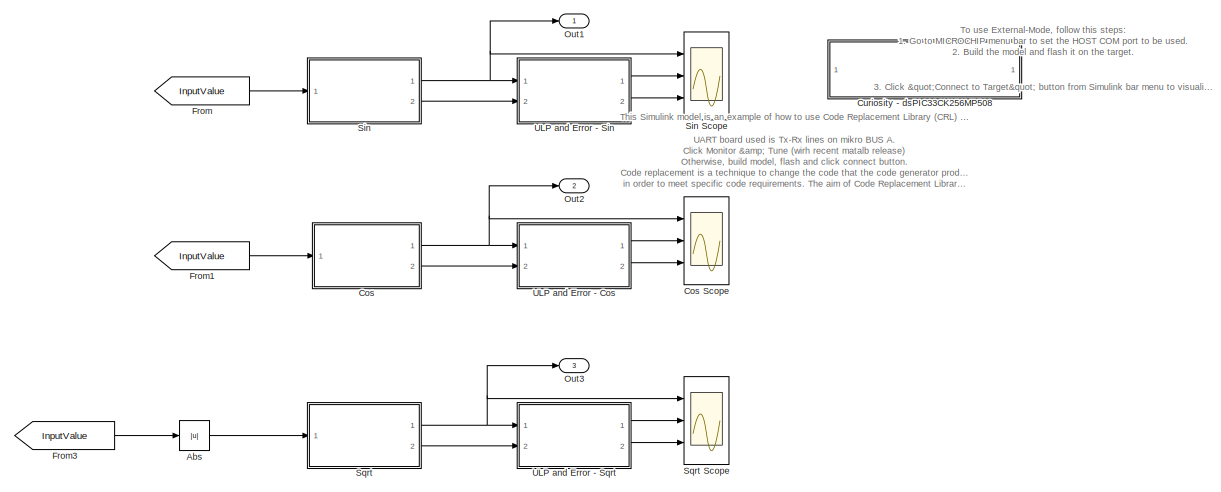
[diagram: root canvas - part 1/2, full width, top band]
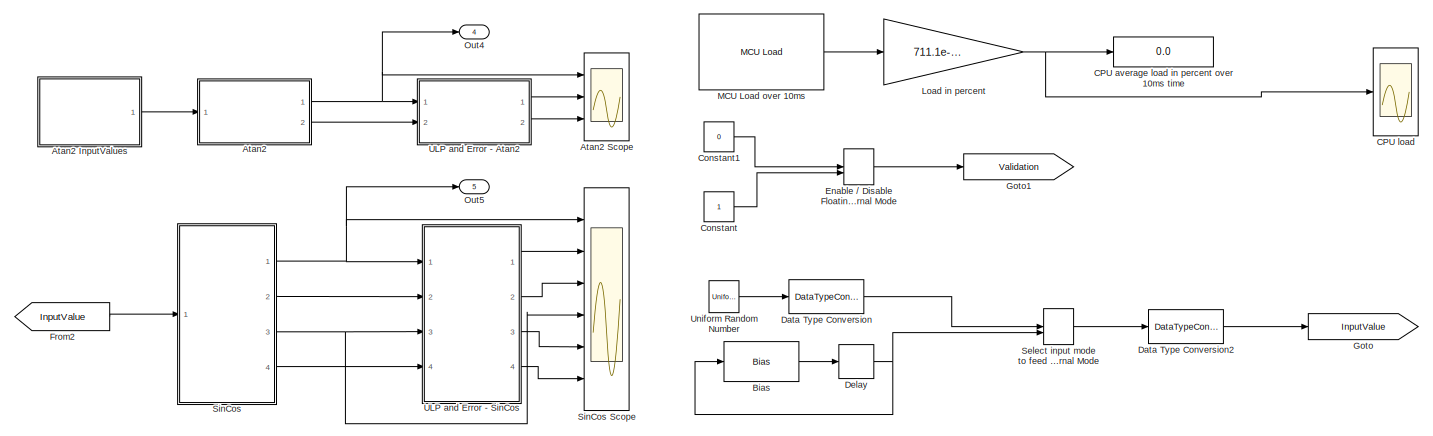
[diagram: root canvas - part 2/2, full width, bottom band]
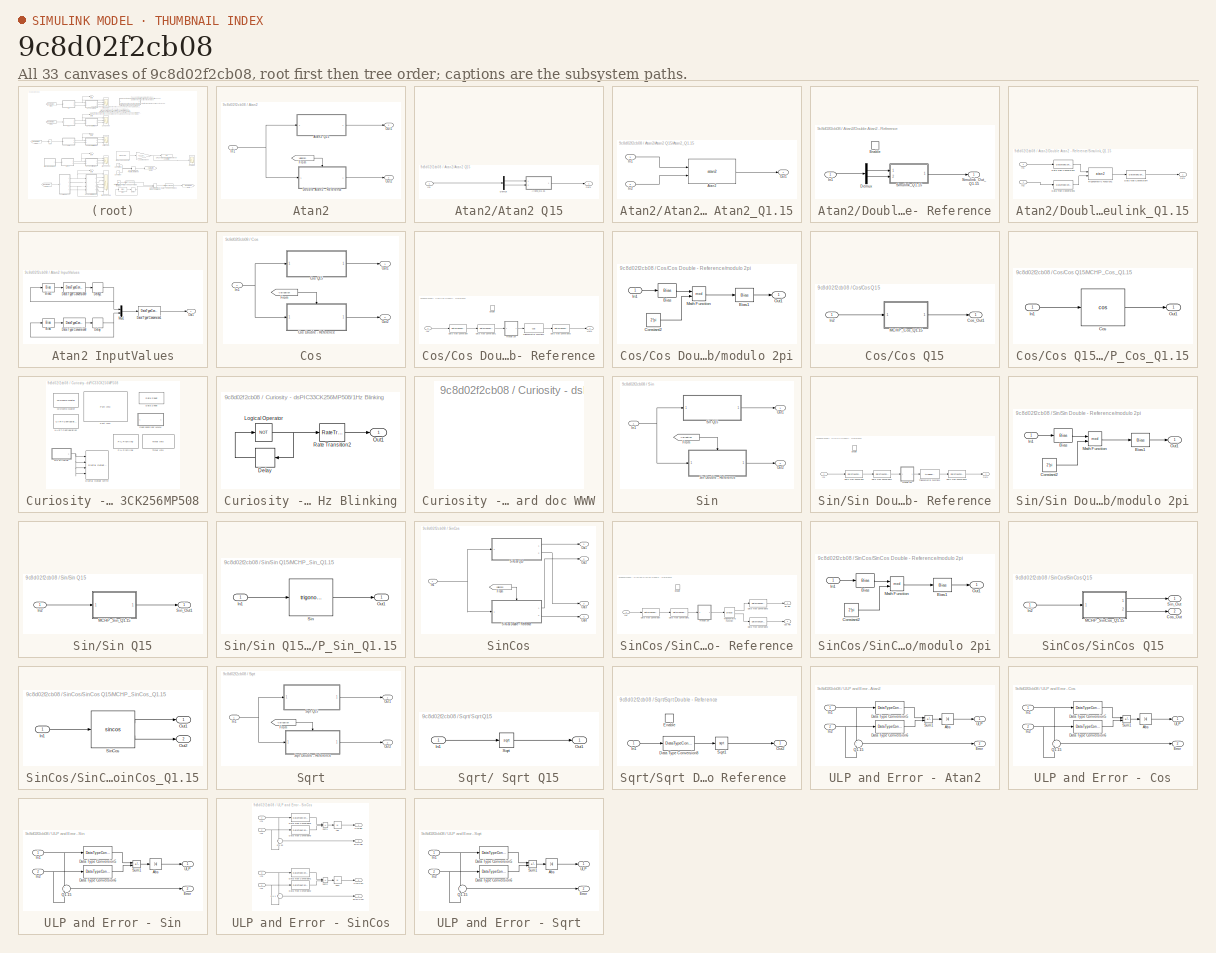
[diagram: thumbnail index - all 33 canvases of the model, root first then tree order]
MODEL slx_9c8d02f2cb08
KIND model
CONFIG AbsTol = auto
CONFIG EnableMultiTasking = off
CONFIG FixedStep = 0.01
CONFIG MaxStep = auto
CONFIG MinStep = auto
CONFIG RelTol = 1e-3
CONFIG SampleTimeConstraint = Unconstrained
CONFIG Solver = FixedStepDiscrete
CONFIG SolverName = FixedStepDiscrete
CONFIG StartTime = 0.0
CONFIG StopTime = inf
BLOCK [Abs] Abs
BLOCK [SubSystem] Atan2
  Ports = [1, 2]
  RequestExecContextInheritance = off
BLOCK [SubSystem] Atan2 InputValues
  Ports = [0, 1]
  RequestExecContextInheritance = off
BLOCK [Bias] Atan2 InputValues/Bias
  Bias = 13
  SaturateOnIntegerOverflow = off
BLOCK [Bias] Atan2 InputValues/Bias1
  Bias = 7
  SaturateOnIntegerOverflow = off
BLOCK [DataTypeConversion] Atan2 InputValues/Data Type Conversion1
  ConvertRealWorld = Stored Integer (SI)
  OutDataTypeStr = fixdt(1,16,15)
  RndMeth = Floor
  SaturateOnIntegerOverflow = off
BLOCK [DataTypeConversion] Atan2 InputValues/Data Type Conversion8
  ConvertRealWorld = Stored Integer (SI)
  OutDataTypeStr = uint16
  RndMeth = Floor
  SaturateOnIntegerOverflow = off
BLOCK [DataTypeConversion] Atan2 InputValues/Data Type Conversion9
  ConvertRealWorld = Stored Integer (SI)
  OutDataTypeStr = uint16
  RndMeth = Floor
  SaturateOnIntegerOverflow = off
BLOCK [Delay] Atan2 InputValues/Delay
  DelayLength = 1
  InitialCondition = 0
  InputPortMap = u0
  Ports = [1, 1]
BLOCK [Delay] Atan2 InputValues/Delay1
  DelayLength = 1
  InitialCondition = 0
  InputPortMap = u0
  Ports = [1, 1]
BLOCK [Mux] Atan2 InputValues/Mux1
  DisplayOption = bar
  Inputs = 2
  Ports = [2, 1]
BLOCK [Outport] Atan2 InputValues/Out1
BLOCK [Scope] Atan2 Scope
  Floating = off
  NumInputPorts = 3
  Ports = [3]
  ScopeSpecificationString = Simulink.scopes.TimeScopeBlockCfg('CurrentConfiguration', extmgr.ConfigurationSet(extmgr.Configuration('Core','General UI',true),extmgr.Configuration('Core','Source UI',true),extmgr.Configuration('Sources','WiredSimulink',true,'DataLoggingLimitDataPoints',true,'DataLoggingMaxPoints','300','DataLoggingVariableName','ScopeData1'),extmgr.Configuration('Visuals','Time Domain',true,'SerializedDisplays'...<+2899ch>
BLOCK [SubSystem] Atan2/Atan2 Q15
  Ports = [1, 1]
  RequestExecContextInheritance = off
BLOCK [SubSystem] Atan2/Atan2 Q15/Atan2_Q1.15
  Ports = [2, 1]
  RTWSystemCode = Reusable function
  RequestExecContextInheritance = off
  TreatAsAtomicUnit = on
BLOCK [Trigonometry] Atan2/Atan2 Q15/Atan2_Q1.15/Atan2
  ApproximationMethod = CORDIC
  NumberOfIterations = 15
  Operator = atan2
  OutputSignalType = real
  Ports = [2, 1]
BLOCK [Inport] Atan2/Atan2 Q15/Atan2_Q1.15/In1
BLOCK [Inport] Atan2/Atan2 Q15/Atan2_Q1.15/In2
  Port = 2
BLOCK [Outport] Atan2/Atan2 Q15/Atan2_Q1.15/Out1
BLOCK [Demux] Atan2/Atan2 Q15/Demux
  Outputs = 2
  Ports = [1, 2]
BLOCK [Inport] Atan2/Atan2 Q15/In1
BLOCK [Outport] Atan2/Atan2 Q15/Out1
BLOCK [SubSystem] Atan2/Double Atan2 - Reference
  Ports = [1, 1, 1]
  RTWSystemCode = Reusable function
  RequestExecContextInheritance = off
  TreatAsAtomicUnit = on
BLOCK [Demux] Atan2/Double Atan2 - Reference/Demux
  Outputs = 2
  Ports = [1, 2]
BLOCK [EnablePort] Atan2/Double Atan2 - Reference/Enable
  Ports = []
BLOCK [Inport] Atan2/Double Atan2 - Reference/In1
BLOCK [Outport] Atan2/Double Atan2 - Reference/Simulink_Out_Q1.15
BLOCK [SubSystem] Atan2/Double Atan2 - Reference/Simulink_Q1.15
  Ports = [2, 1]
  RTWSystemCode = Reusable function
  RequestExecContextInheritance = off
  TreatAsAtomicUnit = on
BLOCK [DataTypeConversion] Atan2/Double Atan2 - Reference/Simulink_Q1.15/Data Type Conversion1
  OutDataTypeStr = single
  RndMeth = Floor
  SaturateOnIntegerOverflow = off
BLOCK [DataTypeConversion] Atan2/Double Atan2 - Reference/Simulink_Q1.15/Data Type Conversion3
  OutDataTypeStr = single
  RndMeth = Floor
  SaturateOnIntegerOverflow = off
BLOCK [DataTypeConversion] Atan2/Double Atan2 - Reference/Simulink_Q1.15/Data Type Conversion4
  OutDataTypeStr = fixdt(1,16,13)
  RndMeth = Convergent
BLOCK [Inport] Atan2/Double Atan2 - Reference/Simulink_Q1.15/In1
BLOCK [Inport] Atan2/Double Atan2 - Reference/Simulink_Q1.15/In2
  Port = 2
BLOCK [Outport] Atan2/Double Atan2 - Reference/Simulink_Q1.15/Out1
BLOCK [Trigonometry] Atan2/Double Atan2 - Reference/Simulink_Q1.15/Trigonometric Function1
  NumberOfIterations = 14
  Operator = atan2
  OutputSignalType = real
  Ports = [2, 1]
BLOCK [From] Atan2/From
  GotoTag = Validation
  TagVisibility = global
BLOCK [Inport] Atan2/In1
BLOCK [Outport] Atan2/Out1
BLOCK [Outport] Atan2/Out2
  Port = 2
BLOCK [Bias] Bias
  Bias = 1+2^6
  SaturateOnIntegerOverflow = off
BLOCK [Display] CPU average load in percent over 10ms time
  Decimation = 1
  Format = long
  Ports = [1]
BLOCK [Scope] CPU load
  Floating = off
  NumInputPorts = 1
  Ports = [1]
  ScopeSpecificationString = Simulink.scopes.TimeScopeBlockCfg('CurrentConfiguration', extmgr.ConfigurationSet(extmgr.Configuration('Core','General UI',true),extmgr.Configuration('Core','Source UI',true),extmgr.Configuration('Sources','WiredSimulink',true,'DataLoggingLimitDataPoints',true,'DataLoggingMaxPoints','300','DataLoggingVariableName','ScopeData1'),extmgr.Configuration('Visuals','Time Domain',true,'SerializedDisplays'...<+1572ch>
BLOCK [Constant] Constant
  OutDataTypeStr = uint16
BLOCK [Constant] Constant1
  OutDataTypeStr = uint16
  Value = 0
BLOCK [SubSystem] Cos
  Ports = [1, 2]
  RequestExecContextInheritance = off
BLOCK [Scope] Cos Scope
  Floating = off
  NumInputPorts = 3
  Ports = [3]
  ScopeSpecificationString = Simulink.scopes.TimeScopeBlockCfg('CurrentConfiguration', extmgr.ConfigurationSet(extmgr.Configuration('Core','General UI',true),extmgr.Configuration('Core','Source UI',true),extmgr.Configuration('Sources','WiredSimulink',true,'DataLoggingLimitDataPoints',true,'DataLoggingMaxPoints','300','DataLoggingVariableName','ScopeData2'),extmgr.Configuration('Visuals','Time Domain',true,'SerializedDisplays'...<+2890ch>
BLOCK [SubSystem] Cos/Cos Double - Reference
  Ports = [1, 1, 1]
  RequestExecContextInheritance = off
BLOCK [DataTypeConversion] Cos/Cos Double - Reference/Data Type Conversion
  ConvertRealWorld = Stored Integer (SI)
  OutDataTypeStr = fixdt(1,16,15)
  RndMeth = Floor
  SaturateOnIntegerOverflow = off
BLOCK [DataTypeConversion] Cos/Cos Double - Reference/Data Type Conversion1
  OutDataTypeStr = single
  RndMeth = Floor
  SaturateOnIntegerOverflow = off
BLOCK [DataTypeConversion] Cos/Cos Double - Reference/Data Type Conversion3
  OutDataTypeStr = fixdt(1,16,14)
  RndMeth = Convergent
BLOCK [EnablePort] Cos/Cos Double - Reference/Enable
  Ports = []
BLOCK [Inport] Cos/Cos Double - Reference/In1
BLOCK [Outport] Cos/Cos Double - Reference/Out1
BLOCK [Trigonometry] Cos/Cos Double - Reference/Trigonometric Function1
  NumberOfIterations = 15
  Operator = cos
  Ports = [1, 1]
BLOCK [SubSystem] Cos/Cos Double - Reference/modulo 2pi
  Ports = [1, 1]
  RequestExecContextInheritance = off
BLOCK [Bias] Cos/Cos Double - Reference/modulo 2pi/Bias
  Bias = pi
  SaturateOnIntegerOverflow = off
BLOCK [Bias] Cos/Cos Double - Reference/modulo 2pi/Bias1
  Bias = -pi
  SaturateOnIntegerOverflow = off
BLOCK [Constant] Cos/Cos Double - Reference/modulo 2pi/Constant2
  OutDataTypeStr = single
  SampleTime = -1
  Value = 2*pi
BLOCK [Inport] Cos/Cos Double - Reference/modulo 2pi/In1
BLOCK [Math] Cos/Cos Double - Reference/modulo 2pi/Math Function
  Operator = mod
  Ports = [2, 1]
BLOCK [Outport] Cos/Cos Double - Reference/modulo 2pi/Out1
BLOCK [SubSystem] Cos/Cos Q15
  Ports = [1, 1]
  RequestExecContextInheritance = off
BLOCK [Outport] Cos/Cos Q15/Cos_Out1
  OutDataTypeStr = fixdt(1,16,14)
BLOCK [Inport] Cos/Cos Q15/In2
BLOCK [SubSystem] Cos/Cos Q15/MCHP_Cos_Q1.15
  Ports = [1, 1]
  RTWSystemCode = Reusable function
  RequestExecContextInheritance = off
  TreatAsAtomicUnit = on
BLOCK [Trigonometry] Cos/Cos Q15/MCHP_Cos_Q1.15/Cos
  ApproximationMethod = CORDIC
  NumberOfIterations = 16
  Operator = cos
  Ports = [1, 1]
BLOCK [Inport] Cos/Cos Q15/MCHP_Cos_Q1.15/In1
BLOCK [Outport] Cos/Cos Q15/MCHP_Cos_Q1.15/Out1
BLOCK [From] Cos/From
  GotoTag = Validation
  TagVisibility = global
BLOCK [Inport] Cos/In1
BLOCK [Outport] Cos/Out1
BLOCK [Outport] Cos/Out2
  Port = 2
BLOCK [SubSystem] Curiosity - dsPIC33CK256MP508
  Ports = []
  RequestExecContextInheritance = off
BLOCK [SubSystem] Curiosity - dsPIC33CK256MP508/1Hz Blinking
  Ports = [0, 1]
  RequestExecContextInheritance = off
BLOCK [Delay] Curiosity - dsPIC33CK256MP508/1Hz Blinking/Delay
  DelayLength = 1
  InitialCondition = 0
  InputPortMap = u0
  Ports = [1, 1]
  SampleTime = .5
BLOCK [Logic] Curiosity - dsPIC33CK256MP508/1Hz Blinking/Logical Operator
  AllPortsSameDT = off
  Operator = NOT
  OutDataTypeStr = boolean
  Ports = [1, 1]
BLOCK [Outport] Curiosity - dsPIC33CK256MP508/1Hz Blinking/Out1
BLOCK [RateTransition] Curiosity - dsPIC33CK256MP508/1Hz Blinking/Rate Transition2
  Deterministic = off
  OutPortSampleTime = .05
BLOCK [Reference] Curiosity - dsPIC33CK256MP508/Data Sheet  REF=MCHP_Blockset/System Info/Data Sheet
  AttributesFormatString = %<cpy_MCHP_Id>
  Ports = []
  SourceBlock = MCHP_Blockset/System Info/Data Sheet
BLOCK [Reference] Curiosity - dsPIC33CK256MP508/Digital Output Write  REF=MCHP_Blockset/Digital IO/Digital Output
Write
  Ports = [4]
  SourceBlock = MCHP_Blockset/Digital IO/Digital Output\nWrite
  SourceType = Output driver for Digital Output Pins
BLOCK [Reference] Curiosity - dsPIC33CK256MP508/Microchip Master  REF=MCHP_Blockset/System Configuration/Microchip Master
  Ports = []
  Priority = 1
  SourceBlock = MCHP_Blockset/System Configuration/Microchip Master
BLOCK [SubSystem] Curiosity - dsPIC33CK256MP508/Open board doc WWW
  OpenFcn = web('https://www.microchip.com/dspic33ckcuriosity','-browser');
  Ports = []
  RequestExecContextInheritance = off
BLOCK [Reference] Curiosity - dsPIC33CK256MP508/PIL Profiling  REF=MCHP_Blockset/Profiling/PIL Profiling
  Ports = []
  SourceBlock = MCHP_Blockset/Profiling/PIL Profiling
  SourceType = Timer Configuration
BLOCK [Reference] Curiosity - dsPIC33CK256MP508/Port Info  REF=MCHP_Blockset/System Info/Port Info
  Ports = []
  SourceBlock = MCHP_Blockset/System Info/Port Info
BLOCK [Reference] Curiosity - dsPIC33CK256MP508/Timer Info  REF=MCHP_Blockset/System Info/Timer Info
  Ports = []
  SourceBlock = MCHP_Blockset/System Info/Timer Info
BLOCK [Reference] Curiosity - dsPIC33CK256MP508/UART Configuration  REF=MCHP_Blockset/BUS UART/UART Configuration
  Ports = []
  SourceBlock = MCHP_Blockset/BUS UART/UART Configuration
  SourceType = Configuration for UART peripheral
BLOCK [DataTypeConversion] Data Type Conversion
  ConvertRealWorld = Stored Integer (SI)
  OutDataTypeStr = uint16
  RndMeth = Floor
  SaturateOnIntegerOverflow = off
BLOCK [DataTypeConversion] Data Type Conversion2
  ConvertRealWorld = Stored Integer (SI)
  OutDataTypeStr = fixdt(1,16,15)
  RndMeth = Floor
  SaturateOnIntegerOverflow = off
BLOCK [Delay] Delay
  DelayLength = 1
  InitialCondition = uint16(0)
  InputPortMap = u0
  Ports = [1, 1]
BLOCK [ManualSwitch] Enable // Disable Floating-Point Reference Output *Modifiable in External Mode
  CurrentSetting = 0
BLOCK [From] From
  GotoTag = InputValue
BLOCK [From] From1
  GotoTag = InputValue
BLOCK [From] From2
  GotoTag = InputValue
BLOCK [From] From3
  GotoTag = InputValue
BLOCK [Goto] Goto
  GotoTag = InputValue
BLOCK [Goto] Goto1
  GotoTag = Validation
  TagVisibility = global
BLOCK [Gain] Load in percent
  Gain = 711.1e-9 / 0.01 * 100
  OutDataTypeStr = single
  OutMax = [20]
  OutMin = [0]
  ParamDataTypeStr = Inherit: Inherit from 'Gain'
BLOCK [Reference] MCU Load over 10ms  REF=MCHP_Blockset/Profiling/MCU Load
  Ports = [0, 1]
  SourceBlock = MCHP_Blockset/Profiling/MCU Load
  SourceType = MCU Load (Profile execution time)
BLOCK [Outport] Out1
BLOCK [Outport] Out2
  Port = 2
BLOCK [Outport] Out3
  Port = 3
BLOCK [Outport] Out4
  Port = 4
BLOCK [Outport] Out5
  Port = 5
BLOCK [ManualSwitch] Select input mode to feed the functions under test *Modifiable in External Mode
  CurrentSetting = 0
BLOCK [SubSystem] Sin
  Ports = [1, 2]
  RequestExecContextInheritance = off
BLOCK [Scope] Sin Scope
  Floating = off
  NumInputPorts = 3
  Ports = [3]
  ScopeSpecificationString = Simulink.scopes.TimeScopeBlockCfg('CurrentConfiguration', extmgr.ConfigurationSet(extmgr.Configuration('Core','General UI',true),extmgr.Configuration('Core','Source UI',true),extmgr.Configuration('Sources','WiredSimulink',true,'DataLoggingLimitDataPoints',true,'DataLoggingMaxPoints','300','DataLoggingVariableName','ScopeData3'),extmgr.Configuration('Visuals','Time Domain',true,'SerializedDisplays'...<+2835ch>
BLOCK [From] Sin/From
  GotoTag = Validation
  TagVisibility = global
BLOCK [Inport] Sin/In1
BLOCK [Outport] Sin/Out1
BLOCK [Outport] Sin/Out2
  Port = 2
BLOCK [SubSystem] Sin/Sin Double - Reference
  Ports = [1, 1, 1]
  RequestExecContextInheritance = off
BLOCK [DataTypeConversion] Sin/Sin Double - Reference/Data Type Conversion
  ConvertRealWorld = Stored Integer (SI)
  OutDataTypeStr = fixdt(1,16,15)
  RndMeth = Floor
  SaturateOnIntegerOverflow = off
BLOCK [DataTypeConversion] Sin/Sin Double - Reference/Data Type Conversion1
  OutDataTypeStr = single
  RndMeth = Floor
  SaturateOnIntegerOverflow = off
BLOCK [DataTypeConversion] Sin/Sin Double - Reference/Data Type Conversion3
  OutDataTypeStr = fixdt(1,16,14)
  RndMeth = Convergent
BLOCK [EnablePort] Sin/Sin Double - Reference/Enable
  Ports = []
BLOCK [Inport] Sin/Sin Double - Reference/In1
BLOCK [Outport] Sin/Sin Double - Reference/Out1
BLOCK [Trigonometry] Sin/Sin Double - Reference/Trigonometric Function1
  NumberOfIterations = 15
  Ports = [1, 1]
BLOCK [SubSystem] Sin/Sin Double - Reference/modulo 2pi
  Ports = [1, 1]
  RequestExecContextInheritance = off
BLOCK [Bias] Sin/Sin Double - Reference/modulo 2pi/Bias
  Bias = pi
  SaturateOnIntegerOverflow = off
BLOCK [Bias] Sin/Sin Double - Reference/modulo 2pi/Bias1
  Bias = -pi
  SaturateOnIntegerOverflow = off
BLOCK [Constant] Sin/Sin Double - Reference/modulo 2pi/Constant2
  OutDataTypeStr = single
  SampleTime = -1
  Value = 2*pi
BLOCK [Inport] Sin/Sin Double - Reference/modulo 2pi/In1
BLOCK [Math] Sin/Sin Double - Reference/modulo 2pi/Math Function
  Operator = mod
  Ports = [2, 1]
BLOCK [Outport] Sin/Sin Double - Reference/modulo 2pi/Out1
BLOCK [SubSystem] Sin/Sin Q15
  Ports = [1, 1]
  RequestExecContextInheritance = off
BLOCK [Inport] Sin/Sin Q15/In2
BLOCK [SubSystem] Sin/Sin Q15/MCHP_Sin_Q1.15
  Ports = [1, 1]
  RTWSystemCode = Reusable function
  RequestExecContextInheritance = off
  TreatAsAtomicUnit = on
BLOCK [Inport] Sin/Sin Q15/MCHP_Sin_Q1.15/In1
BLOCK [Outport] Sin/Sin Q15/MCHP_Sin_Q1.15/Out1
BLOCK [Trigonometry] Sin/Sin Q15/MCHP_Sin_Q1.15/Sin
  ApproximationMethod = CORDIC
  NumberOfIterations = 16
  Ports = [1, 1]
BLOCK [Outport] Sin/Sin Q15/Sin_Out1
  OutDataTypeStr = fixdt(1,16,14)
BLOCK [SubSystem] SinCos
  Ports = [1, 4]
  RequestExecContextInheritance = off
BLOCK [Scope] SinCos Scope
  Floating = off
  NumInputPorts = 6
  Ports = [6]
  ScopeSpecificationString = Simulink.scopes.TimeScopeBlockCfg('CurrentConfiguration', extmgr.ConfigurationSet(extmgr.Configuration('Core','General UI',true),extmgr.Configuration('Core','Source UI',true),extmgr.Configuration('Sources','WiredSimulink',true,'DataLoggingVariableName','ScopeData4','DataLoggingLimitDataPoints',true,'DataLoggingMaxPoints','300'),extmgr.Configuration('Visuals','Time Domain',true,'SerializedDisplays'...<+4946ch>
BLOCK [From] SinCos/From
  GotoTag = Validation
  TagVisibility = global
BLOCK [Inport] SinCos/In1
BLOCK [Outport] SinCos/Out1
BLOCK [Outport] SinCos/Out2
  Port = 2
BLOCK [Outport] SinCos/Out3
  Port = 3
BLOCK [Outport] SinCos/Out4
  Port = 4
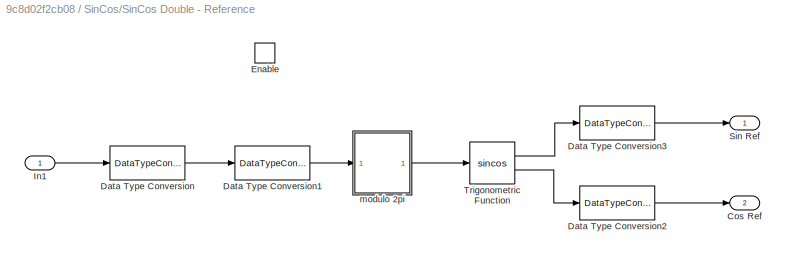
BLOCK [SubSystem] SinCos/SinCos Double - Reference
  Ports = [1, 2, 1]
  RequestExecContextInheritance = off
BLOCK [Outport] SinCos/SinCos Double - Reference/Cos Ref
  Port = 2
BLOCK [DataTypeConversion] SinCos/SinCos Double - Reference/Data Type Conversion
  ConvertRealWorld = Stored Integer (SI)
  OutDataTypeStr = fixdt(1,16,15)
  RndMeth = Floor
  SaturateOnIntegerOverflow = off
BLOCK [DataTypeConversion] SinCos/SinCos Double - Reference/Data Type Conversion1
  OutDataTypeStr = single
  RndMeth = Floor
  SaturateOnIntegerOverflow = off
BLOCK [DataTypeConversion] SinCos/SinCos Double - Reference/Data Type Conversion2
  OutDataTypeStr = fixdt(1,16,14)
  RndMeth = Convergent
BLOCK [DataTypeConversion] SinCos/SinCos Double - Reference/Data Type Conversion3
  OutDataTypeStr = fixdt(1,16,14)
  RndMeth = Convergent
BLOCK [EnablePort] SinCos/SinCos Double - Reference/Enable
  Ports = []
BLOCK [Inport] SinCos/SinCos Double - Reference/In1
BLOCK [Outport] SinCos/SinCos Double - Reference/Sin Ref
BLOCK [Trigonometry] SinCos/SinCos Double - Reference/Trigonometric Function
  Operator = sincos
  Ports = [1, 2]
BLOCK [SubSystem] SinCos/SinCos Double - Reference/modulo 2pi
  Ports = [1, 1]
  RequestExecContextInheritance = off
BLOCK [Bias] SinCos/SinCos Double - Reference/modulo 2pi/Bias
  Bias = pi
  SaturateOnIntegerOverflow = off
BLOCK [Bias] SinCos/SinCos Double - Reference/modulo 2pi/Bias1
  Bias = -pi
  SaturateOnIntegerOverflow = off
BLOCK [Constant] SinCos/SinCos Double - Reference/modulo 2pi/Constant2
  OutDataTypeStr = single
  SampleTime = -1
  Value = 2*pi
BLOCK [Inport] SinCos/SinCos Double - Reference/modulo 2pi/In1
BLOCK [Math] SinCos/SinCos Double - Reference/modulo 2pi/Math Function
  Operator = mod
  Ports = [2, 1]
BLOCK [Outport] SinCos/SinCos Double - Reference/modulo 2pi/Out1
BLOCK [SubSystem] SinCos/SinCos Q15
  Ports = [1, 2]
  RequestExecContextInheritance = off
BLOCK [Outport] SinCos/SinCos Q15/Cos_Out
  OutDataTypeStr = fixdt(1,16,14)
  Port = 2
BLOCK [Inport] SinCos/SinCos Q15/In2
BLOCK [SubSystem] SinCos/SinCos Q15/MCHP_SinCos_Q1.15
  Ports = [1, 2]
  RTWSystemCode = Reusable function
  RequestExecContextInheritance = off
  TreatAsAtomicUnit = on
BLOCK [Inport] SinCos/SinCos Q15/MCHP_SinCos_Q1.15/In1
BLOCK [Outport] SinCos/SinCos Q15/MCHP_SinCos_Q1.15/Out1
BLOCK [Outport] SinCos/SinCos Q15/MCHP_SinCos_Q1.15/Out2
  Port = 2
BLOCK [Trigonometry] SinCos/SinCos Q15/MCHP_SinCos_Q1.15/SinCos
  ApproximationMethod = CORDIC
  NumberOfIterations = 16
  Operator = sincos
  Ports = [1, 2]
BLOCK [Outport] SinCos/SinCos Q15/Sin_Out
  OutDataTypeStr = fixdt(1,16,14)
BLOCK [SubSystem] Sqrt
  Ports = [1, 2]
  RequestExecContextInheritance = off
BLOCK [Scope] Sqrt Scope 
  Floating = off
  NumInputPorts = 3
  Ports = [3]
  ScopeSpecificationString = Simulink.scopes.TimeScopeBlockCfg('CurrentConfiguration', extmgr.ConfigurationSet(extmgr.Configuration('Core','General UI',true),extmgr.Configuration('Core','Source UI',true),extmgr.Configuration('Sources','WiredSimulink',true,'DataLoggingLimitDataPoints',true,'DataLoggingMaxPoints','300'),extmgr.Configuration('Visuals','Time Domain',true,'SerializedDisplays',{struct('MinYLimReal','0.59239','MaxYL...<+2856ch>
BLOCK [SubSystem] Sqrt/ Sqrt Q15
  Ports = [1, 1]
  RTWSystemCode = Reusable function
  RequestExecContextInheritance = off
  TreatAsAtomicUnit = on
BLOCK [Inport] Sqrt/ Sqrt Q15/In1
BLOCK [Outport] Sqrt/ Sqrt Q15/Out1
BLOCK [Sqrt] Sqrt/ Sqrt Q15/Sqrt
  OutDataTypeStr = fixdt(1,16,15)
  SaturateOnIntegerOverflow = off
BLOCK [From] Sqrt/From
  GotoTag = Validation
  TagVisibility = global
BLOCK [Inport] Sqrt/In1
BLOCK [Outport] Sqrt/Out1
BLOCK [Outport] Sqrt/Out2
  Port = 2
BLOCK [SubSystem] Sqrt/Sqrt Double - Reference 
  Ports = [1, 1, 1]
  RequestExecContextInheritance = off
  TreatAsAtomicUnit = on
BLOCK [DataTypeConversion] Sqrt/Sqrt Double - Reference /Data Type Conversion8
  OutDataTypeStr = single
  RndMeth = Floor
  SaturateOnIntegerOverflow = off
BLOCK [EnablePort] Sqrt/Sqrt Double - Reference /Enable
  Ports = []
BLOCK [Inport] Sqrt/Sqrt Double - Reference /In1
BLOCK [Outport] Sqrt/Sqrt Double - Reference /Out2
BLOCK [Sqrt] Sqrt/Sqrt Double - Reference /Sqrt1
  OutDataTypeStr = fixdt(1,16,15)
  RndMeth = Convergent
  SaturateOnIntegerOverflow = off
BLOCK [SubSystem] ULP and Error - Atan2
  Ports = [2, 2]
  RequestExecContextInheritance = off
BLOCK [Abs] ULP and Error - Atan2/Abs
BLOCK [DataTypeConversion] ULP and Error - Atan2/Data Type Conversion5
  ConvertRealWorld = Stored Integer (SI)
  OutDataTypeStr = int16
  RndMeth = Floor
  SaturateOnIntegerOverflow = off
BLOCK [DataTypeConversion] ULP and Error - Atan2/Data Type Conversion6
  ConvertRealWorld = Stored Integer (SI)
  OutDataTypeStr = int16
  RndMeth = Floor
  SaturateOnIntegerOverflow = off
BLOCK [Outport] ULP and Error - Atan2/Error
  Port = 2
BLOCK [Inport] ULP and Error - Atan2/In1
BLOCK [Inport] ULP and Error - Atan2/In2
  Port = 2
BLOCK [Sum] ULP and Error - Atan2/Q1.15
  Inputs = +-
  OutDataTypeStr = single
  Ports = [2, 1]
BLOCK [Sum] ULP and Error - Atan2/Sum1
  IconShape = rectangular
  Inputs = +-
  OutDataTypeStr = Inherit: Same as first input
  Ports = [2, 1]
  SaturateOnIntegerOverflow = on
BLOCK [Outport] ULP and Error - Atan2/ULP
BLOCK [SubSystem] ULP and Error - Cos
  Ports = [2, 2]
  RequestExecContextInheritance = off
BLOCK [Abs] ULP and Error - Cos/Abs
BLOCK [DataTypeConversion] ULP and Error - Cos/Data Type Conversion5
  ConvertRealWorld = Stored Integer (SI)
  OutDataTypeStr = int16
  RndMeth = Floor
  SaturateOnIntegerOverflow = off
BLOCK [DataTypeConversion] ULP and Error - Cos/Data Type Conversion6
  ConvertRealWorld = Stored Integer (SI)
  OutDataTypeStr = int16
  RndMeth = Floor
  SaturateOnIntegerOverflow = off
BLOCK [Outport] ULP and Error - Cos/Error
  Port = 2
BLOCK [Inport] ULP and Error - Cos/In1
BLOCK [Inport] ULP and Error - Cos/In2
  Port = 2
BLOCK [Sum] ULP and Error - Cos/Q1.15
  Inputs = +-
  OutDataTypeStr = single
  Ports = [2, 1]
BLOCK [Sum] ULP and Error - Cos/Sum1
  IconShape = rectangular
  Inputs = +-
  OutDataTypeStr = Inherit: Same as first input
  Ports = [2, 1]
  SaturateOnIntegerOverflow = on
BLOCK [Outport] ULP and Error - Cos/ULP
BLOCK [SubSystem] ULP and Error - Sin
  Ports = [2, 2]
  RequestExecContextInheritance = off
BLOCK [Abs] ULP and Error - Sin/Abs
BLOCK [DataTypeConversion] ULP and Error - Sin/Data Type Conversion5
  ConvertRealWorld = Stored Integer (SI)
  OutDataTypeStr = int16
  RndMeth = Floor
  SaturateOnIntegerOverflow = off
BLOCK [DataTypeConversion] ULP and Error - Sin/Data Type Conversion6
  ConvertRealWorld = Stored Integer (SI)
  OutDataTypeStr = int16
  RndMeth = Floor
  SaturateOnIntegerOverflow = off
BLOCK [Outport] ULP and Error - Sin/Error
  Port = 2
BLOCK [Inport] ULP and Error - Sin/In1
BLOCK [Inport] ULP and Error - Sin/In2
  Port = 2
BLOCK [Sum] ULP and Error - Sin/Q1.15
  Inputs = +-
  OutDataTypeStr = single
  Ports = [2, 1]
BLOCK [Sum] ULP and Error - Sin/Sum1
  IconShape = rectangular
  Inputs = +-
  OutDataTypeStr = Inherit: Same as first input
  Ports = [2, 1]
  SaturateOnIntegerOverflow = on
BLOCK [Outport] ULP and Error - Sin/ULP
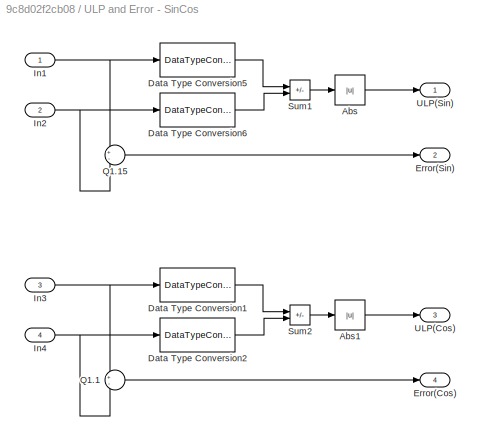
BLOCK [SubSystem] ULP and Error - SinCos
  Ports = [4, 4]
  RequestExecContextInheritance = off
BLOCK [Abs] ULP and Error - SinCos/Abs
BLOCK [Abs] ULP and Error - SinCos/Abs1
BLOCK [DataTypeConversion] ULP and Error - SinCos/Data Type Conversion1
  ConvertRealWorld = Stored Integer (SI)
  OutDataTypeStr = int16
  RndMeth = Floor
  SaturateOnIntegerOverflow = off
BLOCK [DataTypeConversion] ULP and Error - SinCos/Data Type Conversion2
  ConvertRealWorld = Stored Integer (SI)
  OutDataTypeStr = int16
  RndMeth = Floor
  SaturateOnIntegerOverflow = off
BLOCK [DataTypeConversion] ULP and Error - SinCos/Data Type Conversion5
  ConvertRealWorld = Stored Integer (SI)
  OutDataTypeStr = int16
  RndMeth = Floor
  SaturateOnIntegerOverflow = off
BLOCK [DataTypeConversion] ULP and Error - SinCos/Data Type Conversion6
  ConvertRealWorld = Stored Integer (SI)
  OutDataTypeStr = int16
  RndMeth = Floor
  SaturateOnIntegerOverflow = off
BLOCK [Outport] ULP and Error - SinCos/Error(Cos)
  Port = 4
BLOCK [Outport] ULP and Error - SinCos/Error(Sin)
  Port = 2
BLOCK [Inport] ULP and Error - SinCos/In1
BLOCK [Inport] ULP and Error - SinCos/In2
  Port = 2
BLOCK [Inport] ULP and Error - SinCos/In3
  Port = 3
BLOCK [Inport] ULP and Error - SinCos/In4
  Port = 4
BLOCK [Sum] ULP and Error - SinCos/Q1.1
  Inputs = +-
  OutDataTypeStr = single
  Ports = [2, 1]
BLOCK [Sum] ULP and Error - SinCos/Q1.15
  Inputs = +-
  OutDataTypeStr = single
  Ports = [2, 1]
BLOCK [Sum] ULP and Error - SinCos/Sum1
  IconShape = rectangular
  Inputs = +-
  OutDataTypeStr = Inherit: Same as first input
  Ports = [2, 1]
  SaturateOnIntegerOverflow = on
BLOCK [Sum] ULP and Error - SinCos/Sum2
  IconShape = rectangular
  Inputs = +-
  OutDataTypeStr = Inherit: Same as first input
  Ports = [2, 1]
  SaturateOnIntegerOverflow = on
BLOCK [Outport] ULP and Error - SinCos/ULP(Cos)
  Port = 3
BLOCK [Outport] ULP and Error - SinCos/ULP(Sin)
BLOCK [SubSystem] ULP and Error - Sqrt
  Ports = [2, 2]
  RequestExecContextInheritance = off
BLOCK [Abs] ULP and Error - Sqrt/Abs
BLOCK [DataTypeConversion] ULP and Error - Sqrt/Data Type Conversion5
  ConvertRealWorld = Stored Integer (SI)
  OutDataTypeStr = int16
  RndMeth = Floor
  SaturateOnIntegerOverflow = off
BLOCK [DataTypeConversion] ULP and Error - Sqrt/Data Type Conversion6
  ConvertRealWorld = Stored Integer (SI)
  OutDataTypeStr = int16
  RndMeth = Floor
  SaturateOnIntegerOverflow = off
BLOCK [Outport] ULP and Error - Sqrt/Error
  Port = 2
BLOCK [Inport] ULP and Error - Sqrt/In1
BLOCK [Inport] ULP and Error - Sqrt/In2
  Port = 2
BLOCK [Sum] ULP and Error - Sqrt/Q1.15
  Inputs = +-
  OutDataTypeStr = single
  Ports = [2, 1]
BLOCK [Sum] ULP and Error - Sqrt/Sum1
  IconShape = rectangular
  Inputs = +-
  OutDataTypeStr = Inherit: Same as first input
  Ports = [2, 1]
  SaturateOnIntegerOverflow = on
BLOCK [Outport] ULP and Error - Sqrt/ULP
BLOCK [UniformRandomNumber] Uniform Random Number
  Maximum = 2^16
  Minimum = 0
ANNOTATION (root): This Simulink model is an example of how to use Code Replacement Library (CRL) for dsPIC devices in External Mode. This model could be adapted to work in PIL mode as Referenced Model. UART board used is Tx-Rx lines on mikro BUS A. Click Monitor & Tune (wirh recent matalb release) Otherwise, build model, flash and click connect button. Code replacement is a technique to change the code that the cod...<+1140ch>
ANNOTATION (root): To use External-Mode, follow this steps: 1. Go to MICROCHIP menu bar to set the HOST COM port to be used. 2. Build the model and flash it on the target. 3. Click "Connect to Target" button from Simulink bar menu to visualise onboard-computed values.
LINE Abs:1 -> Sqrt:1
LINE Atan2 InputValues/Bias1:1 -> Atan2 InputValues/Data Type Conversion9:1
LINE Atan2 InputValues/Bias:1 -> Atan2 InputValues/Data Type Conversion8:1
LINE Atan2 InputValues/Data Type Conversion1:1 -> Atan2 InputValues/Out1:1
LINE Atan2 InputValues/Data Type Conversion8:1 -> Atan2 InputValues/Delay:1
LINE Atan2 InputValues/Data Type Conversion9:1 -> Atan2 InputValues/Delay1:1
NET Atan2 InputValues/Delay1:1 -> Atan2 InputValues/Bias1:1, Atan2 InputValues/Mux1:1
NET Atan2 InputValues/Delay:1 -> Atan2 InputValues/Bias:1, Atan2 InputValues/Mux1:2
LINE Atan2 InputValues/Mux1:1 -> Atan2 InputValues/Data Type Conversion1:1
LINE Atan2 InputValues:1 -> Atan2:1
LINE Atan2/Atan2 Q15/Atan2_Q1.15/Atan2:1 -> Atan2/Atan2 Q15/Atan2_Q1.15/Out1:1
LINE Atan2/Atan2 Q15/Atan2_Q1.15/In1:1 -> Atan2/Atan2 Q15/Atan2_Q1.15/Atan2:1
LINE Atan2/Atan2 Q15/Atan2_Q1.15/In2:1 -> Atan2/Atan2 Q15/Atan2_Q1.15/Atan2:2
LINE Atan2/Atan2 Q15/Atan2_Q1.15:1 -> Atan2/Atan2 Q15/Out1:1
LINE Atan2/Atan2 Q15/Demux:1 -> Atan2/Atan2 Q15/Atan2_Q1.15:1
LINE Atan2/Atan2 Q15/Demux:2 -> Atan2/Atan2 Q15/Atan2_Q1.15:2
LINE Atan2/Atan2 Q15/In1:1 -> Atan2/Atan2 Q15/Demux:1
LINE Atan2/Atan2 Q15:1 -> Atan2/Out1:1
LINE Atan2/Double Atan2 - Reference/Demux:1 -> Atan2/Double Atan2 - Reference/Simulink_Q1.15:1
LINE Atan2/Double Atan2 - Reference/Demux:2 -> Atan2/Double Atan2 - Reference/Simulink_Q1.15:2
LINE Atan2/Double Atan2 - Reference/In1:1 -> Atan2/Double Atan2 - Reference/Demux:1
LINE Atan2/Double Atan2 - Reference/Simulink_Q1.15/Data Type Conversion1:1 -> Atan2/Double Atan2 - Reference/Simulink_Q1.15/Trigonometric Function1:1
LINE Atan2/Double Atan2 - Reference/Simulink_Q1.15/Data Type Conversion3:1 -> Atan2/Double Atan2 - Reference/Simulink_Q1.15/Trigonometric Function1:2
LINE Atan2/Double Atan2 - Reference/Simulink_Q1.15/Data Type Conversion4:1 -> Atan2/Double Atan2 - Reference/Simulink_Q1.15/Out1:1
LINE Atan2/Double Atan2 - Reference/Simulink_Q1.15/In1:1 -> Atan2/Double Atan2 - Reference/Simulink_Q1.15/Data Type Conversion1:1
LINE Atan2/Double Atan2 - Reference/Simulink_Q1.15/In2:1 -> Atan2/Double Atan2 - Reference/Simulink_Q1.15/Data Type Conversion3:1
LINE Atan2/Double Atan2 - Reference/Simulink_Q1.15/Trigonometric Function1:1 -> Atan2/Double Atan2 - Reference/Simulink_Q1.15/Data Type Conversion4:1
LINE Atan2/Double Atan2 - Reference/Simulink_Q1.15:1 -> Atan2/Double Atan2 - Reference/Simulink_Out_Q1.15:1
LINE Atan2/Double Atan2 - Reference:1 -> Atan2/Out2:1
LINE Atan2/From:1 -> Atan2/Double Atan2 - Reference:enable
NET Atan2/In1:1 -> Atan2/Atan2 Q15:1, Atan2/Double Atan2 - Reference:1
NET Atan2:1 -> Atan2 Scope:1, Out4:1, ULP and Error - Atan2:1
LINE Atan2:2 -> ULP and Error - Atan2:2
LINE Bias:1 -> Delay:1
LINE Constant1:1 -> Enable // Disable Floating-Point Reference Output *Modifiable in External Mode:1
LINE Constant:1 -> Enable // Disable Floating-Point Reference Output *Modifiable in External Mode:2
LINE Cos/Cos Double - Reference/Data Type Conversion1:1 -> Cos/Cos Double - Reference/modulo 2pi:1
LINE Cos/Cos Double - Reference/Data Type Conversion3:1 -> Cos/Cos Double - Reference/Out1:1
LINE Cos/Cos Double - Reference/Data Type Conversion:1 -> Cos/Cos Double - Reference/Data Type Conversion1:1
LINE Cos/Cos Double - Reference/In1:1 -> Cos/Cos Double - Reference/Data Type Conversion:1
LINE Cos/Cos Double - Reference/Trigonometric Function1:1 -> Cos/Cos Double - Reference/Data Type Conversion3:1
LINE Cos/Cos Double - Reference/modulo 2pi/Bias1:1 -> Cos/Cos Double - Reference/modulo 2pi/Out1:1
LINE Cos/Cos Double - Reference/modulo 2pi/Bias:1 -> Cos/Cos Double - Reference/modulo 2pi/Math Function:1
LINE Cos/Cos Double - Reference/modulo 2pi/Constant2:1 -> Cos/Cos Double - Reference/modulo 2pi/Math Function:2
LINE Cos/Cos Double - Reference/modulo 2pi/In1:1 -> Cos/Cos Double - Reference/modulo 2pi/Bias:1
LINE Cos/Cos Double - Reference/modulo 2pi/Math Function:1 -> Cos/Cos Double - Reference/modulo 2pi/Bias1:1
LINE Cos/Cos Double - Reference/modulo 2pi:1 -> Cos/Cos Double - Reference/Trigonometric Function1:1
LINE Cos/Cos Double - Reference:1 -> Cos/Out2:1
LINE Cos/Cos Q15/In2:1 -> Cos/Cos Q15/MCHP_Cos_Q1.15:1
LINE Cos/Cos Q15/MCHP_Cos_Q1.15/Cos:1 -> Cos/Cos Q15/MCHP_Cos_Q1.15/Out1:1
LINE Cos/Cos Q15/MCHP_Cos_Q1.15/In1:1 -> Cos/Cos Q15/MCHP_Cos_Q1.15/Cos:1
LINE Cos/Cos Q15/MCHP_Cos_Q1.15:1 -> Cos/Cos Q15/Cos_Out1:1
LINE Cos/Cos Q15:1 -> Cos/Out1:1
LINE Cos/From:1 -> Cos/Cos Double - Reference:enable
NET Cos/In1:1 -> Cos/Cos Double - Reference:1, Cos/Cos Q15:1
NET Cos:1 -> Cos Scope:1, Out2:1, ULP and Error - Cos:1
LINE Cos:2 -> ULP and Error - Cos:2
LINE Curiosity - dsPIC33CK256MP508/1Hz Blinking/Delay:1 -> Curiosity - dsPIC33CK256MP508/1Hz Blinking/Logical Operator:1
NET Curiosity - dsPIC33CK256MP508/1Hz Blinking/Logical Operator:1 -> Curiosity - dsPIC33CK256MP508/1Hz Blinking/Delay:1, Curiosity - dsPIC33CK256MP508/1Hz Blinking/Rate Transition2:1
LINE Curiosity - dsPIC33CK256MP508/1Hz Blinking/Rate Transition2:1 -> Curiosity - dsPIC33CK256MP508/1Hz Blinking/Out1:1
NET Curiosity - dsPIC33CK256MP508/1Hz Blinking:1 -> Curiosity - dsPIC33CK256MP508/Digital Output Write:1, Curiosity - dsPIC33CK256MP508/Digital Output Write:2, Curiosity - dsPIC33CK256MP508/Digital Output Write:3, Curiosity - dsPIC33CK256MP508/Digital Output Write:4
LINE Data Type Conversion2:1 -> Goto:1
LINE Data Type Conversion:1 -> Select input mode to feed the functions under test *Modifiable in External Mode:1
NET Delay:1 -> Bias:1, Select input mode to feed the functions under test *Modifiable in External Mode:2
LINE Enable // Disable Floating-Point Reference Output *Modifiable in External Mode:1 -> Goto1:1
LINE From1:1 -> Cos:1
LINE From2:1 -> SinCos:1
LINE From3:1 -> Abs:1
LINE From:1 -> Sin:1
NET Load in percent:1 -> CPU average load in percent over 10ms time:1, CPU load:1
LINE MCU Load over 10ms:1 -> Load in percent:1
LINE Select input mode to feed the functions under test *Modifiable in External Mode:1 -> Data Type Conversion2:1
LINE Sin/From:1 -> Sin/Sin Double - Reference:enable
NET Sin/In1:1 -> Sin/Sin Double - Reference:1, Sin/Sin Q15:1
LINE Sin/Sin Double - Reference/Data Type Conversion1:1 -> Sin/Sin Double - Reference/modulo 2pi:1
LINE Sin/Sin Double - Reference/Data Type Conversion3:1 -> Sin/Sin Double - Reference/Out1:1
LINE Sin/Sin Double - Reference/Data Type Conversion:1 -> Sin/Sin Double - Reference/Data Type Conversion1:1
LINE Sin/Sin Double - Reference/In1:1 -> Sin/Sin Double - Reference/Data Type Conversion:1
LINE Sin/Sin Double - Reference/Trigonometric Function1:1 -> Sin/Sin Double - Reference/Data Type Conversion3:1
LINE Sin/Sin Double - Reference/modulo 2pi/Bias1:1 -> Sin/Sin Double - Reference/modulo 2pi/Out1:1
LINE Sin/Sin Double - Reference/modulo 2pi/Bias:1 -> Sin/Sin Double - Reference/modulo 2pi/Math Function:1
LINE Sin/Sin Double - Reference/modulo 2pi/Constant2:1 -> Sin/Sin Double - Reference/modulo 2pi/Math Function:2
LINE Sin/Sin Double - Reference/modulo 2pi/In1:1 -> Sin/Sin Double - Reference/modulo 2pi/Bias:1
LINE Sin/Sin Double - Reference/modulo 2pi/Math Function:1 -> Sin/Sin Double - Reference/modulo 2pi/Bias1:1
LINE Sin/Sin Double - Reference/modulo 2pi:1 -> Sin/Sin Double - Reference/Trigonometric Function1:1
LINE Sin/Sin Double - Reference:1 -> Sin/Out2:1
LINE Sin/Sin Q15/In2:1 -> Sin/Sin Q15/MCHP_Sin_Q1.15:1
LINE Sin/Sin Q15/MCHP_Sin_Q1.15/In1:1 -> Sin/Sin Q15/MCHP_Sin_Q1.15/Sin:1
LINE Sin/Sin Q15/MCHP_Sin_Q1.15/Sin:1 -> Sin/Sin Q15/MCHP_Sin_Q1.15/Out1:1
LINE Sin/Sin Q15/MCHP_Sin_Q1.15:1 -> Sin/Sin Q15/Sin_Out1:1
LINE Sin/Sin Q15:1 -> Sin/Out1:1
NET Sin:1 -> Out1:1, Sin Scope:1, ULP and Error - Sin:1
LINE Sin:2 -> ULP and Error - Sin:2
LINE SinCos/From:1 -> SinCos/SinCos Double - Reference:enable
NET SinCos/In1:1 -> SinCos/SinCos Double - Reference:1, SinCos/SinCos Q15:1
LINE SinCos/SinCos Double - Reference/Data Type Conversion1:1 -> SinCos/SinCos Double - Reference/modulo 2pi:1
LINE SinCos/SinCos Double - Reference/Data Type Conversion2:1 -> SinCos/SinCos Double - Reference/Cos Ref:1
LINE SinCos/SinCos Double - Reference/Data Type Conversion3:1 -> SinCos/SinCos Double - Reference/Sin Ref:1
LINE SinCos/SinCos Double - Reference/Data Type Conversion:1 -> SinCos/SinCos Double - Reference/Data Type Conversion1:1
LINE SinCos/SinCos Double - Reference/In1:1 -> SinCos/SinCos Double - Reference/Data Type Conversion:1
LINE SinCos/SinCos Double - Reference/Trigonometric Function:1 -> SinCos/SinCos Double - Reference/Data Type Conversion3:1
LINE SinCos/SinCos Double - Reference/Trigonometric Function:2 -> SinCos/SinCos Double - Reference/Data Type Conversion2:1
LINE SinCos/SinCos Double - Reference/modulo 2pi/Bias1:1 -> SinCos/SinCos Double - Reference/modulo 2pi/Out1:1
LINE SinCos/SinCos Double - Reference/modulo 2pi/Bias:1 -> SinCos/SinCos Double - Reference/modulo 2pi/Math Function:1
LINE SinCos/SinCos Double - Reference/modulo 2pi/Constant2:1 -> SinCos/SinCos Double - Reference/modulo 2pi/Math Function:2
LINE SinCos/SinCos Double - Reference/modulo 2pi/In1:1 -> SinCos/SinCos Double - Reference/modulo 2pi/Bias:1
LINE SinCos/SinCos Double - Reference/modulo 2pi/Math Function:1 -> SinCos/SinCos Double - Reference/modulo 2pi/Bias1:1
LINE SinCos/SinCos Double - Reference/modulo 2pi:1 -> SinCos/SinCos Double - Reference/Trigonometric Function:1
LINE SinCos/SinCos Double - Reference:1 -> SinCos/Out2:1
LINE SinCos/SinCos Double - Reference:2 -> SinCos/Out4:1
LINE SinCos/SinCos Q15/In2:1 -> SinCos/SinCos Q15/MCHP_SinCos_Q1.15:1
LINE SinCos/SinCos Q15/MCHP_SinCos_Q1.15/In1:1 -> SinCos/SinCos Q15/MCHP_SinCos_Q1.15/SinCos:1
LINE SinCos/SinCos Q15/MCHP_SinCos_Q1.15/SinCos:1 -> SinCos/SinCos Q15/MCHP_SinCos_Q1.15/Out1:1
LINE SinCos/SinCos Q15/MCHP_SinCos_Q1.15/SinCos:2 -> SinCos/SinCos Q15/MCHP_SinCos_Q1.15/Out2:1
LINE SinCos/SinCos Q15/MCHP_SinCos_Q1.15:1 -> SinCos/SinCos Q15/Sin_Out:1
LINE SinCos/SinCos Q15/MCHP_SinCos_Q1.15:2 -> SinCos/SinCos Q15/Cos_Out:1
LINE SinCos/SinCos Q15:1 -> SinCos/Out1:1
LINE SinCos/SinCos Q15:2 -> SinCos/Out3:1
NET SinCos:1 -> Out5:1, SinCos Scope:1, ULP and Error - SinCos:1
LINE SinCos:2 -> ULP and Error - SinCos:2
NET SinCos:3 -> SinCos Scope:4, ULP and Error - SinCos:3
LINE SinCos:4 -> ULP and Error - SinCos:4
LINE Sqrt/ Sqrt Q15/In1:1 -> Sqrt/ Sqrt Q15/Sqrt:1
LINE Sqrt/ Sqrt Q15/Sqrt:1 -> Sqrt/ Sqrt Q15/Out1:1
LINE Sqrt/ Sqrt Q15:1 -> Sqrt/Out1:1
LINE Sqrt/From:1 -> Sqrt/Sqrt Double - Reference :enable
NET Sqrt/In1:1 -> Sqrt/ Sqrt Q15:1, Sqrt/Sqrt Double - Reference :1
LINE Sqrt/Sqrt Double - Reference /Data Type Conversion8:1 -> Sqrt/Sqrt Double - Reference /Sqrt1:1
LINE Sqrt/Sqrt Double - Reference /In1:1 -> Sqrt/Sqrt Double - Reference /Data Type Conversion8:1
LINE Sqrt/Sqrt Double - Reference /Sqrt1:1 -> Sqrt/Sqrt Double - Reference /Out2:1
LINE Sqrt/Sqrt Double - Reference :1 -> Sqrt/Out2:1
NET Sqrt:1 -> Out3:1, Sqrt Scope :1, ULP and Error - Sqrt:1
LINE Sqrt:2 -> ULP and Error - Sqrt:2
LINE ULP and Error - Atan2/Abs:1 -> ULP and Error - Atan2/ULP:1
LINE ULP and Error - Atan2/Data Type Conversion5:1 -> ULP and Error - Atan2/Sum1:1
LINE ULP and Error - Atan2/Data Type Conversion6:1 -> ULP and Error - Atan2/Sum1:2
NET ULP and Error - Atan2/In1:1 -> ULP and Error - Atan2/Data Type Conversion5:1, ULP and Error - Atan2/Q1.15:1
NET ULP and Error - Atan2/In2:1 -> ULP and Error - Atan2/Data Type Conversion6:1, ULP and Error - Atan2/Q1.15:2
LINE ULP and Error - Atan2/Q1.15:1 -> ULP and Error - Atan2/Error:1
LINE ULP and Error - Atan2/Sum1:1 -> ULP and Error - Atan2/Abs:1
LINE ULP and Error - Atan2:1 -> Atan2 Scope:2
LINE ULP and Error - Atan2:2 -> Atan2 Scope:3
LINE ULP and Error - Cos/Abs:1 -> ULP and Error - Cos/ULP:1
LINE ULP and Error - Cos/Data Type Conversion5:1 -> ULP and Error - Cos/Sum1:1
LINE ULP and Error - Cos/Data Type Conversion6:1 -> ULP and Error - Cos/Sum1:2
NET ULP and Error - Cos/In1:1 -> ULP and Error - Cos/Data Type Conversion5:1, ULP and Error - Cos/Q1.15:1
NET ULP and Error - Cos/In2:1 -> ULP and Error - Cos/Data Type Conversion6:1, ULP and Error - Cos/Q1.15:2
LINE ULP and Error - Cos/Q1.15:1 -> ULP and Error - Cos/Error:1
LINE ULP and Error - Cos/Sum1:1 -> ULP and Error - Cos/Abs:1
LINE ULP and Error - Cos:1 -> Cos Scope:2
LINE ULP and Error - Cos:2 -> Cos Scope:3
LINE ULP and Error - Sin/Abs:1 -> ULP and Error - Sin/ULP:1
LINE ULP and Error - Sin/Data Type Conversion5:1 -> ULP and Error - Sin/Sum1:1
LINE ULP and Error - Sin/Data Type Conversion6:1 -> ULP and Error - Sin/Sum1:2
NET ULP and Error - Sin/In1:1 -> ULP and Error - Sin/Data Type Conversion5:1, ULP and Error - Sin/Q1.15:1
NET ULP and Error - Sin/In2:1 -> ULP and Error - Sin/Data Type Conversion6:1, ULP and Error - Sin/Q1.15:2
LINE ULP and Error - Sin/Q1.15:1 -> ULP and Error - Sin/Error:1
LINE ULP and Error - Sin/Sum1:1 -> ULP and Error - Sin/Abs:1
LINE ULP and Error - Sin:1 -> Sin Scope:2
LINE ULP and Error - Sin:2 -> Sin Scope:3
LINE ULP and Error - SinCos/Abs1:1 -> ULP and Error - SinCos/ULP(Cos):1
LINE ULP and Error - SinCos/Abs:1 -> ULP and Error - SinCos/ULP(Sin):1
LINE ULP and Error - SinCos/Data Type Conversion1:1 -> ULP and Error - SinCos/Sum2:1
LINE ULP and Error - SinCos/Data Type Conversion2:1 -> ULP and Error - SinCos/Sum2:2
LINE ULP and Error - SinCos/Data Type Conversion5:1 -> ULP and Error - SinCos/Sum1:1
LINE ULP and Error - SinCos/Data Type Conversion6:1 -> ULP and Error - SinCos/Sum1:2
NET ULP and Error - SinCos/In1:1 -> ULP and Error - SinCos/Data Type Conversion5:1, ULP and Error - SinCos/Q1.15:1
NET ULP and Error - SinCos/In2:1 -> ULP and Error - SinCos/Data Type Conversion6:1, ULP and Error - SinCos/Q1.15:2
NET ULP and Error - SinCos/In3:1 -> ULP and Error - SinCos/Data Type Conversion1:1, ULP and Error - SinCos/Q1.1:1
NET ULP and Error - SinCos/In4:1 -> ULP and Error - SinCos/Data Type Conversion2:1, ULP and Error - SinCos/Q1.1:2
LINE ULP and Error - SinCos/Q1.15:1 -> ULP and Error - SinCos/Error(Sin):1
LINE ULP and Error - SinCos/Q1.1:1 -> ULP and Error - SinCos/Error(Cos):1
LINE ULP and Error - SinCos/Sum1:1 -> ULP and Error - SinCos/Abs:1
LINE ULP and Error - SinCos/Sum2:1 -> ULP and Error - SinCos/Abs1:1
LINE ULP and Error - SinCos:1 -> SinCos Scope:2
LINE ULP and Error - SinCos:2 -> SinCos Scope:3
LINE ULP and Error - SinCos:3 -> SinCos Scope:5
LINE ULP and Error - SinCos:4 -> SinCos Scope:6
LINE ULP and Error - Sqrt/Abs:1 -> ULP and Error - Sqrt/ULP:1
LINE ULP and Error - Sqrt/Data Type Conversion5:1 -> ULP and Error - Sqrt/Sum1:1
LINE ULP and Error - Sqrt/Data Type Conversion6:1 -> ULP and Error - Sqrt/Sum1:2
NET ULP and Error - Sqrt/In1:1 -> ULP and Error - Sqrt/Data Type Conversion5:1, ULP and Error - Sqrt/Q1.15:1
NET ULP and Error - Sqrt/In2:1 -> ULP and Error - Sqrt/Data Type Conversion6:1, ULP and Error - Sqrt/Q1.15:2
LINE ULP and Error - Sqrt/Q1.15:1 -> ULP and Error - Sqrt/Error:1
LINE ULP and Error - Sqrt/Sum1:1 -> ULP and Error - Sqrt/Abs:1
LINE ULP and Error - Sqrt:1 -> Sqrt Scope :2
LINE ULP and Error - Sqrt:2 -> Sqrt Scope :3
LINE Uniform Random Number:1 -> Data Type Conversion:1
note: NET lines group one-source signal fan-out (src -> all destinations, sorted); 1:1 wires keep LINE
